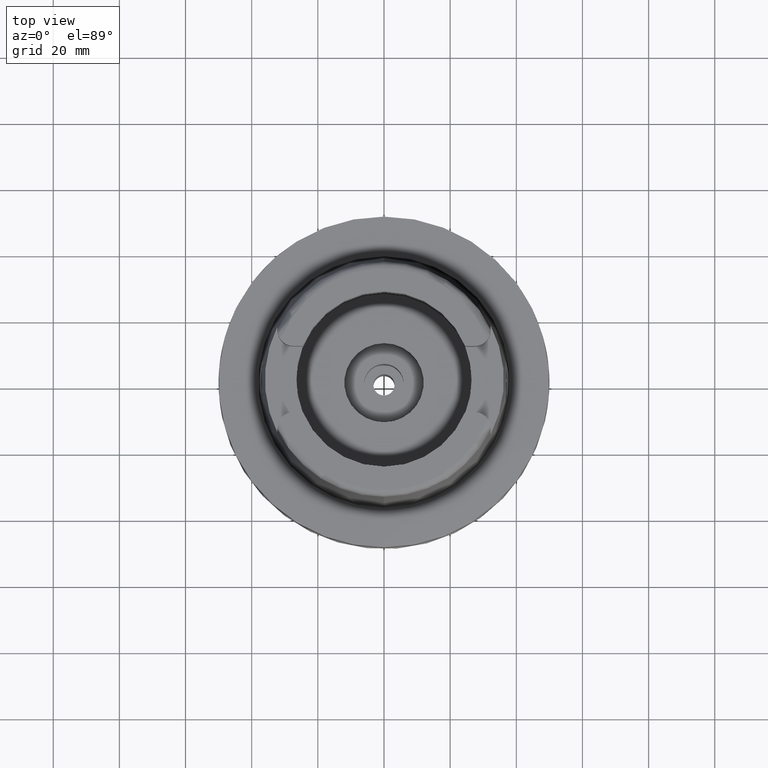
[diagram: clean part render]
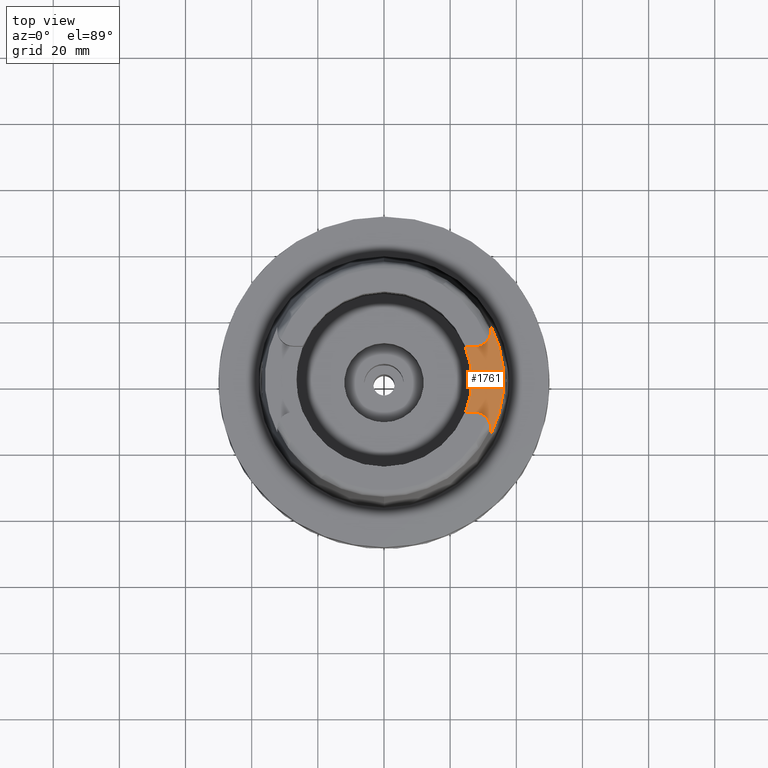
[diagram: same view with one face highlighted and labeled with its STEP entity id]
A machine part, top view. The second image highlights one B-rep face of the part: STEP entity #1761.
In plain terms, the highlighted planar face has unit normal (0, 0, 1).
Its self-contained STEP definition (entity closure, byte-faithful):
#203 = CARTESIAN_POINT ( 'NONE',  ( 27.36999999999999744, -10.00999999999999979, 35.00000000000000000 ) ) ;
#427 = PLANE ( 'NONE',  #3015 ) ;
#469 = DIRECTION ( 'NONE',  ( 0.8896561898442558736, 0.4566309931134779343, 0.0000000000000000000 ) ) ;
#493 = DIRECTION ( 'NONE',  ( 0.0000000000000000000, 0.0000000000000000000, -1.000000000000000000 ) ) ;
#573 = AXIS2_PLACEMENT_3D ( 'NONE', #2612, #2639, #4856 ) ;
#587 = LINE ( 'NONE', #4453, #1773 ) ;
#656 = VECTOR ( 'NONE', #5180, 1000.000000000000000 ) ;
#834 = VERTEX_POINT ( 'NONE', #203 ) ;
#935 = VECTOR ( 'NONE', #4084, 1000.000000000000114 ) ;
#968 = EDGE_CURVE ( 'NONE', #5559, #3223, #3707, .T. ) ;
#988 = EDGE_CURVE ( 'NONE', #3223, #4802, #3584, .T. ) ;
#1051 = DIRECTION ( 'NONE',  ( 0.0000000000000000000, -1.000000000000000000, 0.0000000000000000000 ) ) ;
#1116 = CIRCLE ( 'NONE', #3717, 26.50000000000000711 ) ;
#1206 = CARTESIAN_POINT ( 'NONE',  ( 0.0000000000000000000, 0.0000000000000000000, 35.00000000000000000 ) ) ;
#1552 = CARTESIAN_POINT ( 'NONE',  ( 27.36999999999999744, 14.89000000000000057, 35.00000000000000000 ) ) ;
#1559 = EDGE_LOOP ( 'NONE', ( #3306, #3718, #2682, #4218, #5557, #5131, #2778, #5178 ) ) ;
#1726 = DIRECTION ( 'NONE',  ( 0.9259134021805098813, -0.3777358490566039562, 0.0000000000000000000 ) ) ;
#1761 = ADVANCED_FACE ( 'NONE', ( #2946 ), #427, .T. ) ;
#1773 = VECTOR ( 'NONE', #3173, 1000.000000000000000 ) ;
#1805 = CARTESIAN_POINT ( 'NONE',  ( 32.25000000000000000, -16.55285457013000183, 35.00000000000000000 ) ) ;
#1983 = VERTEX_POINT ( 'NONE', #2223 ) ;
#2031 = VERTEX_POINT ( 'NONE', #4335 ) ;
#2223 = CARTESIAN_POINT ( 'NONE',  ( 24.53670515777999839, -10.00999999999999979, 35.00000000000000000 ) ) ;
#2300 = CARTESIAN_POINT ( 'NONE',  ( 24.53670515777999839, 10.00999999999999979, 35.00000000000000000 ) ) ;
#2366 = CARTESIAN_POINT ( 'NONE',  ( 32.25000000000000000, 14.89000000000000057, 35.00000000000000000 ) ) ;
#2508 = CARTESIAN_POINT ( 'NONE',  ( 32.25000000000000000, -15.44428485661910599, 35.00000000000000000 ) ) ;
#2519 = DIRECTION ( 'NONE',  ( 1.000000000000000000, 0.0000000000000000000, 0.0000000000000000000 ) ) ;
#2523 = DIRECTION ( 'NONE',  ( 0.0000000000000000000, 0.0000000000000000000, 1.000000000000000000 ) ) ;
#2562 = B_SPLINE_CURVE_WITH_KNOTS ( 'NONE', 3,
 ( #4567, #2900, #2508, #4656 ),
 .UNSPECIFIED., .F., .F.,
 ( 4, 4 ),
 ( 0.0000000000000000000, 1.000000000000000000 ),
 .UNSPECIFIED. ) ;
#2612 = CARTESIAN_POINT ( 'NONE',  ( 27.36999999999999744, -14.89000000000000057, 35.00000000000000000 ) ) ;
#2639 = DIRECTION ( 'NONE',  ( 0.0000000000000000000, 0.0000000000000000000, 1.000000000000000000 ) ) ;
#2642 = CARTESIAN_POINT ( 'NONE',  ( 32.25000000000000000, 16.55285457013000183, 35.00000000000000000 ) ) ;
#2682 = ORIENTED_EDGE ( 'NONE', *, *, #4449, .F. ) ;
#2778 = ORIENTED_EDGE ( 'NONE', *, *, #3685, .F. ) ;
#2900 = CARTESIAN_POINT ( 'NONE',  ( 32.25000000000000000, -15.99856971323821142, 35.00000000000000000 ) ) ;
#2946 = FACE_OUTER_BOUND ( 'NONE', #1559, .T. ) ;
#3013 = CIRCLE ( 'NONE', #573, 4.880000000000002558 ) ;
#3015 = AXIS2_PLACEMENT_3D ( 'NONE', #4577, #5454, #2519 ) ;
#3052 = CARTESIAN_POINT ( 'NONE',  ( 27.36999999999999744, 10.00999999999999979, 35.00000000000000000 ) ) ;
#3088 = AXIS2_PLACEMENT_3D ( 'NONE', #1552, #4007, #1051 ) ;
#3173 = DIRECTION ( 'NONE',  ( -1.000000000000000000, -1.460812116737999860E-13, 0.0000000000000000000 ) ) ;
#3223 = VERTEX_POINT ( 'NONE', #3513 ) ;
#3287 = VERTEX_POINT ( 'NONE', #5285 ) ;
#3306 = ORIENTED_EDGE ( 'NONE', *, *, #4701, .F. ) ;
#3505 = CARTESIAN_POINT ( 'NONE',  ( 0.0000000000000000000, 0.0000000000000000000, 35.00000000000000000 ) ) ;
#3513 = CARTESIAN_POINT ( 'NONE',  ( 32.25000000000000000, 14.89000000000000057, 35.00000000000000000 ) ) ;
#3562 = EDGE_CURVE ( 'NONE', #1983, #2031, #1116, .T. ) ;
#3584 = LINE ( 'NONE', #2366, #935 ) ;
#3685 = EDGE_CURVE ( 'NONE', #2031, #5559, #3959, .T. ) ;
#3707 = CIRCLE ( 'NONE', #3088, 4.879999999999999005 ) ;
#3717 = AXIS2_PLACEMENT_3D ( 'NONE', #1206, #2523, #1726 ) ;
#3718 = ORIENTED_EDGE ( 'NONE', *, *, #3722, .F. ) ;
#3722 = EDGE_CURVE ( 'NONE', #3287, #834, #3013, .T. ) ;
#3763 = VERTEX_POINT ( 'NONE', #1805 ) ;
#3959 = LINE ( 'NONE', #2300, #656 ) ;
#4007 = DIRECTION ( 'NONE',  ( 0.0000000000000000000, 0.0000000000000000000, 1.000000000000000000 ) ) ;
#4084 = DIRECTION ( 'NONE',  ( -2.841526755965894529E-06, 0.9999999999959628960, 2.136488158935919871E-14 ) ) ;
#4218 = ORIENTED_EDGE ( 'NONE', *, *, #5416, .F. ) ;
#4335 = CARTESIAN_POINT ( 'NONE',  ( 24.53670515777999839, 10.00999999999999979, 35.00000000000000000 ) ) ;
#4449 = EDGE_CURVE ( 'NONE', #3763, #3287, #2562, .T. ) ;
#4453 = CARTESIAN_POINT ( 'NONE',  ( 27.36999999999999744, -10.00999999999999979, 35.00000000000000000 ) ) ;
#4543 = CIRCLE ( 'NONE', #5551, 36.24995854370000359 ) ;
#4567 = CARTESIAN_POINT ( 'NONE',  ( 32.25000000000000000, -16.55285457013000183, 35.00000000000000000 ) ) ;
#4577 = CARTESIAN_POINT ( 'NONE',  ( 0.0000000000000000000, 0.0000000000000000000, 35.00000000000000000 ) ) ;
#4656 = CARTESIAN_POINT ( 'NONE',  ( 32.25000000000000000, -14.89000000000000057, 35.00000000000000000 ) ) ;
#4701 = EDGE_CURVE ( 'NONE', #834, #1983, #587, .T. ) ;
#4802 = VERTEX_POINT ( 'NONE', #2642 ) ;
#4856 = DIRECTION ( 'NONE',  ( 1.000000000000000000, 0.0000000000000000000, 0.0000000000000000000 ) ) ;
#5131 = ORIENTED_EDGE ( 'NONE', *, *, #968, .F. ) ;
#5178 = ORIENTED_EDGE ( 'NONE', *, *, #3562, .F. ) ;
#5180 = DIRECTION ( 'NONE',  ( 1.000000000000000000, -1.416925057436999913E-13, 0.0000000000000000000 ) ) ;
#5285 = CARTESIAN_POINT ( 'NONE',  ( 32.25000000000000000, -14.89000000000000057, 35.00000000000000000 ) ) ;
#5416 = EDGE_CURVE ( 'NONE', #4802, #3763, #4543, .T. ) ;
#5454 = DIRECTION ( 'NONE',  ( 0.0000000000000000000, 0.0000000000000000000, 1.000000000000000000 ) ) ;
#5551 = AXIS2_PLACEMENT_3D ( 'NONE', #3505, #493, #469 ) ;
#5557 = ORIENTED_EDGE ( 'NONE', *, *, #988, .F. ) ;
#5559 = VERTEX_POINT ( 'NONE', #3052 ) ;